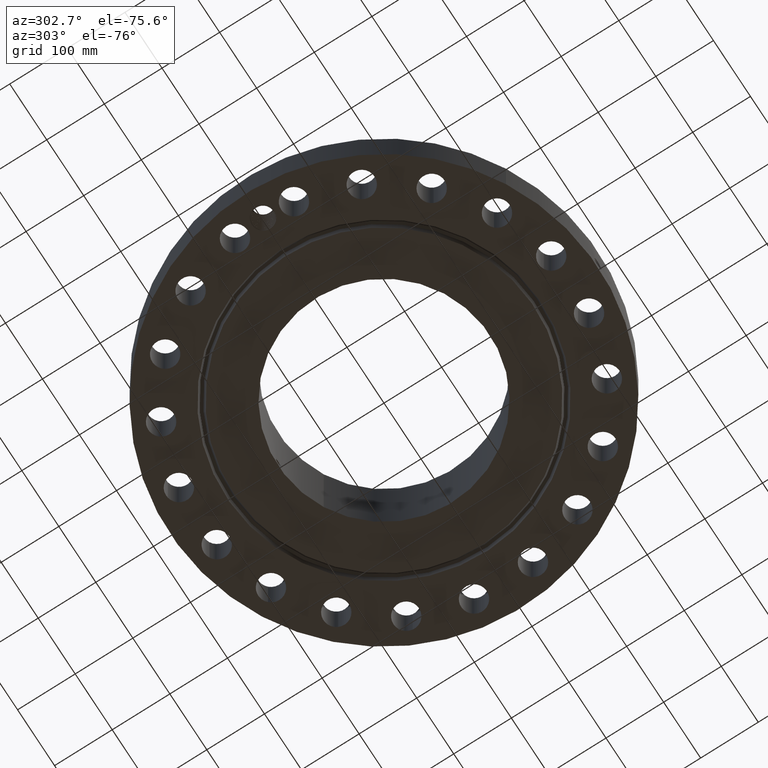
[diagram: clean part render]
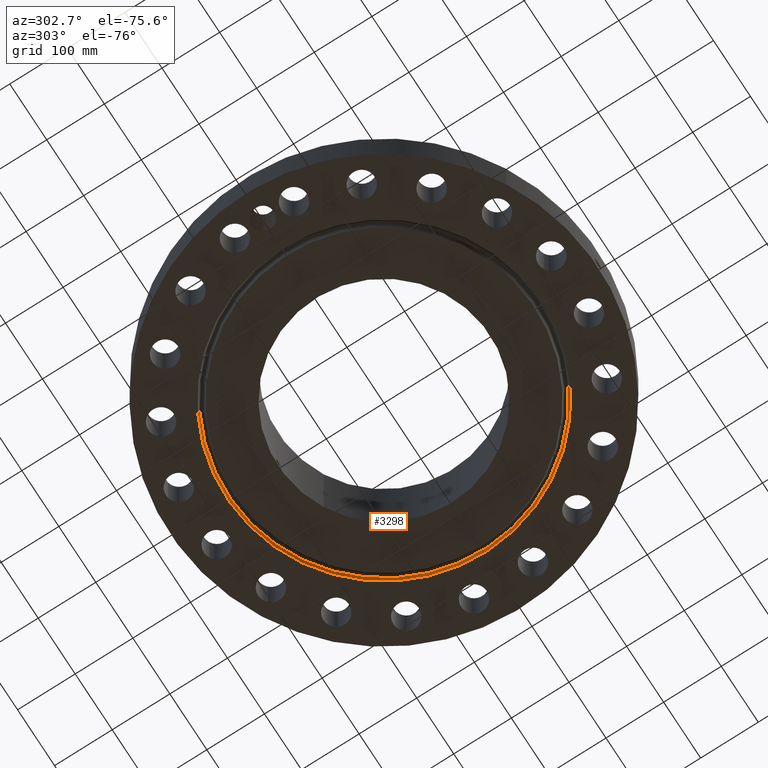
[diagram: same view with one face highlighted and labeled with its STEP entity id]
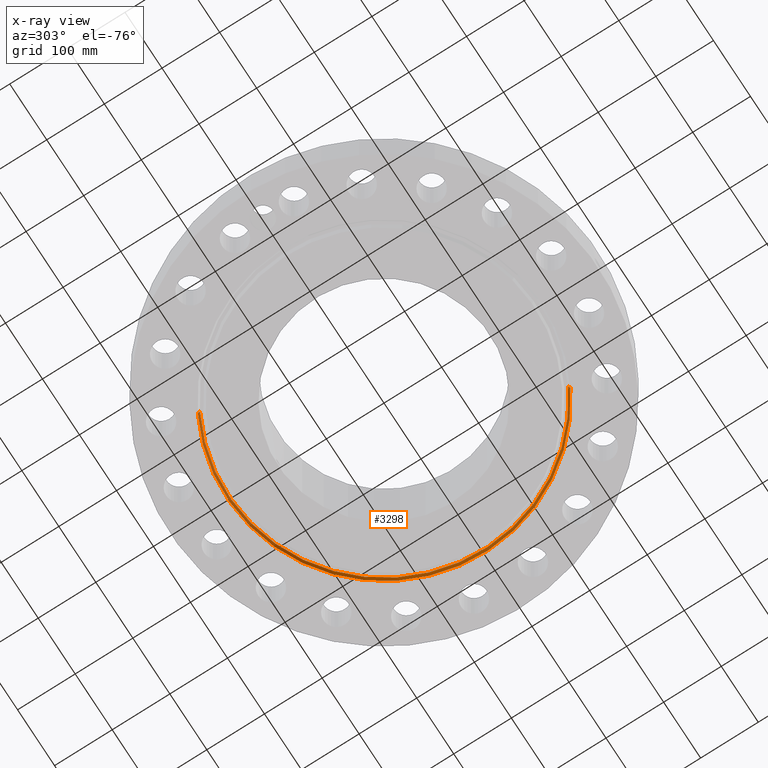
[diagram: x-ray of the same camera — body ghosted, the highlighted face saturated]
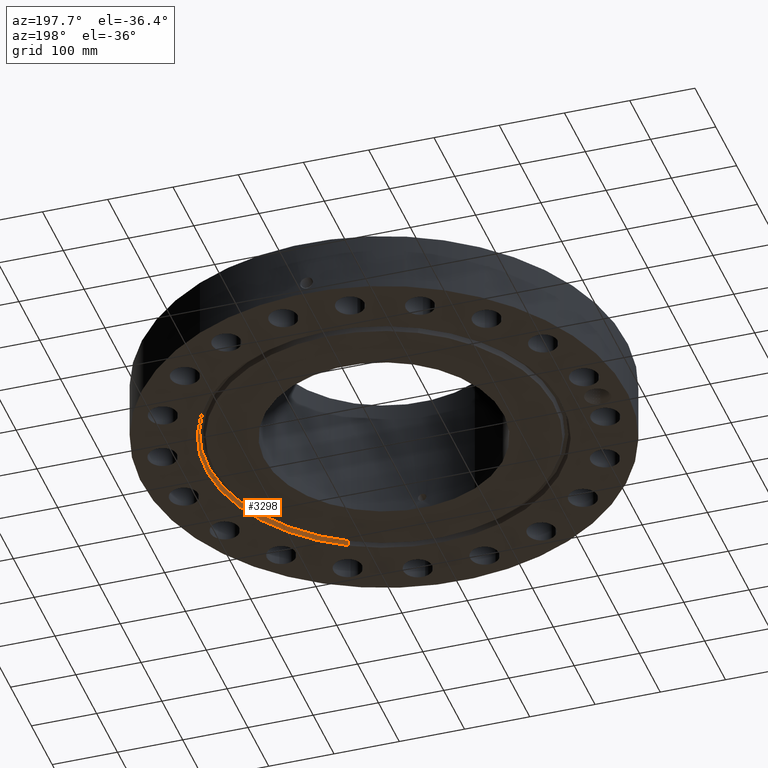
[diagram: same view with one face highlighted and labeled with its STEP entity id]
A machine part, auxiliary view. The second image highlights one B-rep face of the part: STEP entity #3298.
The next image is the same camera in x-ray: the body ghosted, the highlighted face saturated — about 0% of this face is hidden behind the body in this view.
A second angle (auxiliary view) of the same face is appended — the face is thin or edge-on in the first view.
In plain terms, the highlighted conical surface has half-angle 23 deg.
Its self-contained STEP definition (entity closure, byte-faithful):
#2609=AXIS2_PLACEMENT_3D('Circle Axis2P3D',#2607,#2608,$) ;
#3271=AXIS2_PLACEMENT_3D('Cone Axis2P3D',#3268,#3269,#3270) ;
#3275=AXIS2_PLACEMENT_3D('Circle Axis2P3D',#3273,#3274,$) ;
#2607=CARTESIAN_POINT('Axis2P3D Location',(0.,0.,0.293721933856)) ;
#2611=CARTESIAN_POINT('Vertex',(5.08661983595,-9.31099515472,0.293721933856)) ;
#2613=CARTESIAN_POINT('Vertex',(-5.08661983595,9.31099515472,0.293721933856)) ;
#3268=CARTESIAN_POINT('Axis2P3D Location',(0.,0.,0.293721933856)) ;
#3273=CARTESIAN_POINT('Axis2P3D Location',(0.,0.,0.)) ;
#3277=CARTESIAN_POINT('Vertex',(-5.14639344417,9.42041001065,0.)) ;
#3279=CARTESIAN_POINT('Vertex',(5.14639344417,-9.42041001065,-1.60851209867E-015)) ;
#3282=CARTESIAN_POINT('Line Origine',(5.11650664006,-9.36570258269,0.146860966928)) ;
#3287=CARTESIAN_POINT('Line Origine',(-5.11650664006,9.36570258269,0.146860966928)) ;
#2608=DIRECTION('Axis2P3D Direction',(0.,0.,0.0393700787402)) ;
#3269=DIRECTION('Axis2P3D Direction',(-0.,-0.,-0.0393700787402)) ;
#3270=DIRECTION('Axis2P3D XDirection',(0.0188750212049,-0.0345504945626,0.)) ;
#3274=DIRECTION('Axis2P3D Direction',(0.,0.,-0.0393700787402)) ;
#3283=DIRECTION('Vector Direction',(0.00737505833565,-0.0134999537303,-0.0362403485611)) ;
#3288=DIRECTION('Vector Direction',(-0.00737505833565,0.0134999537303,-0.0362403485611)) ;
#3284=VECTOR('Line Direction',#3283,0.0393700787402) ;
#3289=VECTOR('Line Direction',#3288,0.0393700787402) ;
#3293=ORIENTED_EDGE('',*,*,#3281,.T.) ;
#3294=ORIENTED_EDGE('',*,*,#3286,.T.) ;
#3295=ORIENTED_EDGE('',*,*,#2615,.T.) ;
#3296=ORIENTED_EDGE('',*,*,#3291,.F.) ;
#3298=ADVANCED_FACE('PartBody',(#3297),#3272,.F.) ;
#2610=CIRCLE('generated circle',#2609,10.6098224362) ;
#3276=CIRCLE('generated circle',#3275,10.7345) ;
#3272=CONICAL_SURFACE('Cone',#3271,10.6098224362,0.401425727959) ;
#2615=EDGE_CURVE('',#2612,#2614,#2610,.T.) ;
#3281=EDGE_CURVE('',#3278,#3280,#3276,.T.) ;
#3286=EDGE_CURVE('',#3280,#2612,#3285,.F.) ;
#3291=EDGE_CURVE('',#3278,#2614,#3290,.F.) ;
#3292=EDGE_LOOP('',(#3293,#3294,#3295,#3296)) ;
#3297=FACE_OUTER_BOUND('',#3292,.T.) ;
#3285=LINE('Line',#3282,#3284) ;
#3290=LINE('Line',#3287,#3289) ;
#2612=VERTEX_POINT('',#2611) ;
#2614=VERTEX_POINT('',#2613) ;
#3278=VERTEX_POINT('',#3277) ;
#3280=VERTEX_POINT('',#3279) ;